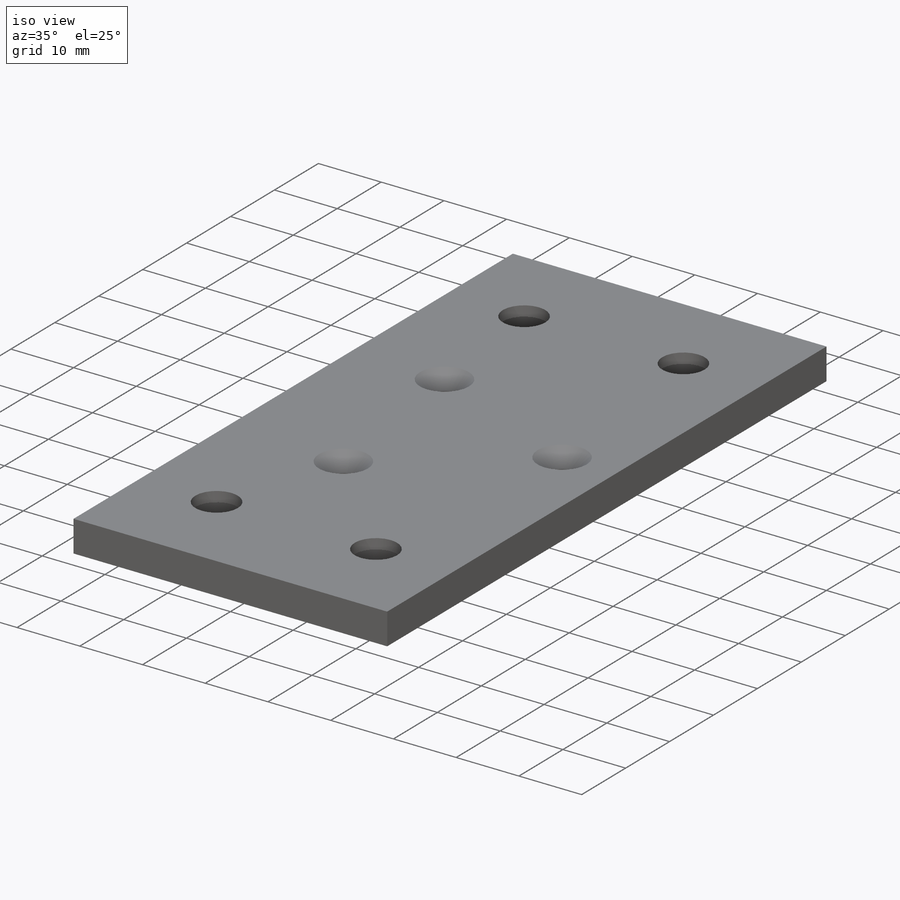
[diagram: iso view]
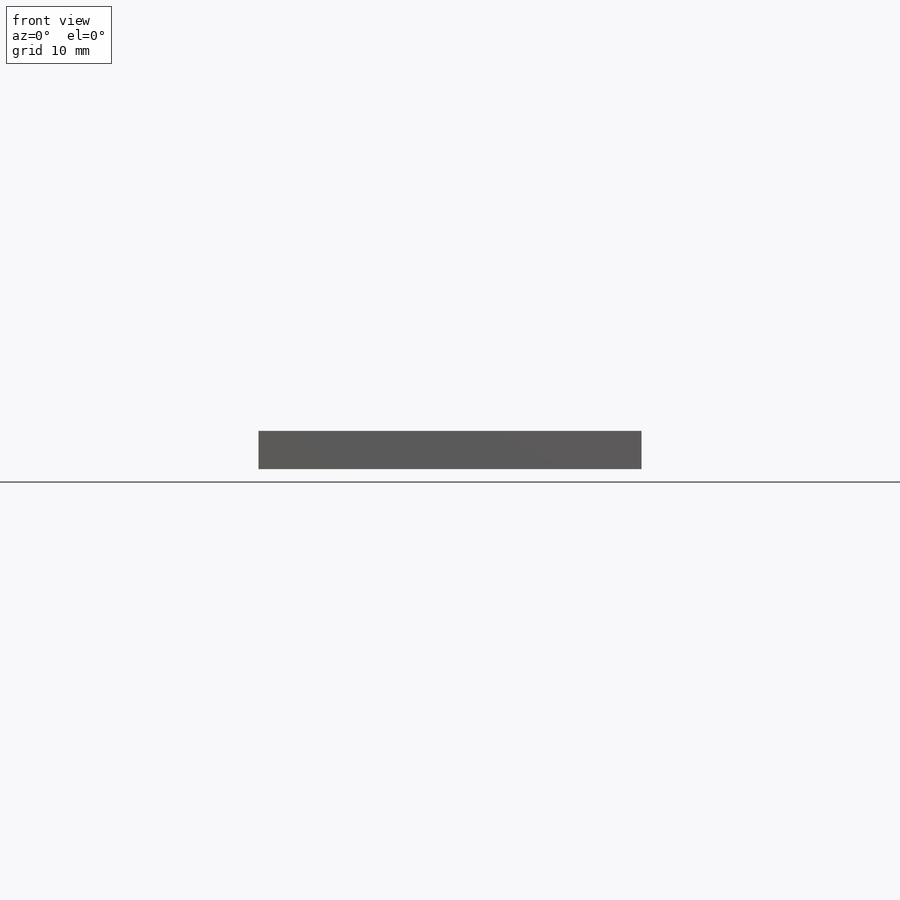
[diagram: front view]
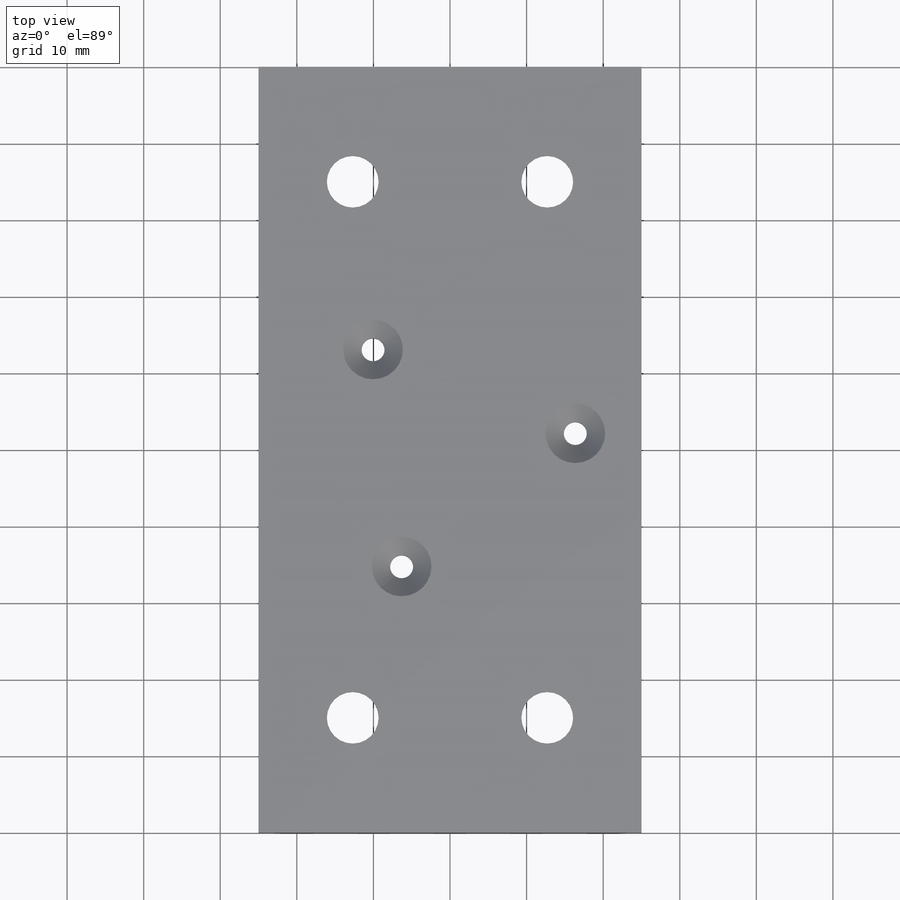
[diagram: top view]
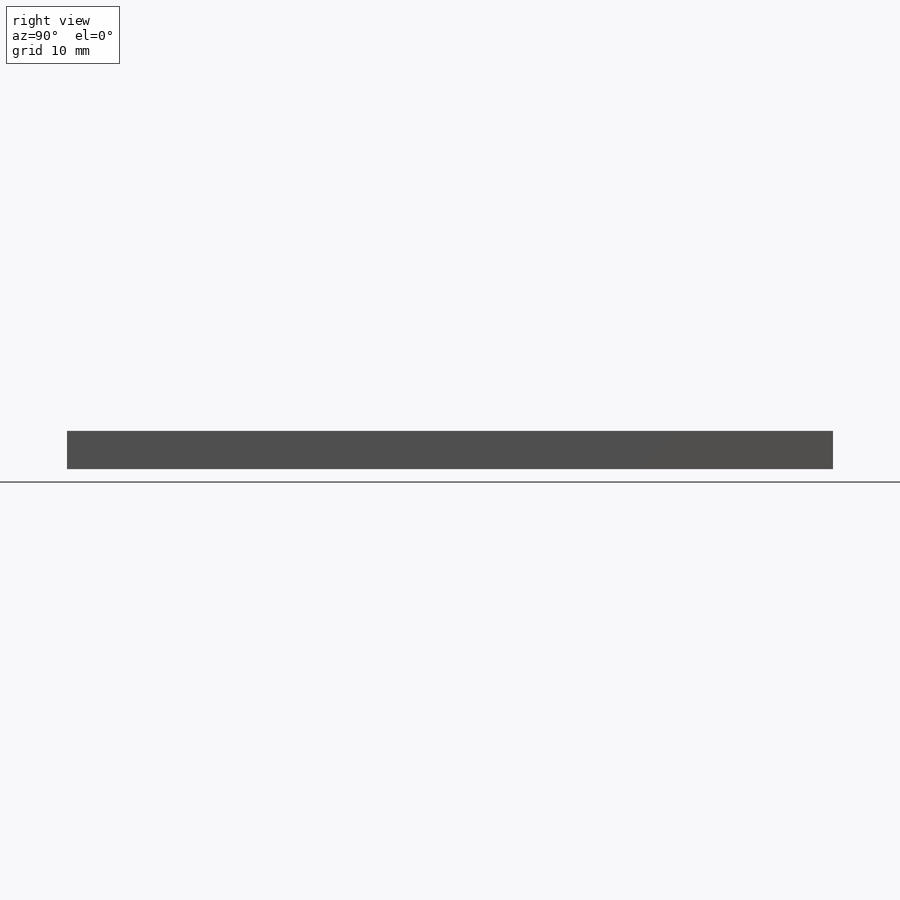
[diagram: right view]
SOLIDWORKS PART (.sldprt)
format: sldprt  version: not decoded by parser v0  size: 208,896 bytes
history: native  units: mm
features: sketch x5, material x1, extrude x1, cut_extrude x1, chamfer x1, hole x1 (+12 scaffold rows collapsed)
feature tree (22):
  scaffold x12  (default folders/planes/origin — collapsed)
  material  "Material <not specified>"
  sketch  "Sketch1"  dims[D1=100.0mm D2=50.0mm]
  extrude  "Boss-Extrude1"  Depth=5mm
  sketch  "Sketch3"  dims[c1.D2=3.0mm c1.D5=3.0mm c1.D8=3.0mm c1.D1=~26.898464mm c2.D1=22.5deg c2.D3=16.5mm c2.D4=~27.059805mm c3.D4=120.0deg c3.D6=16.5mm c3.D7=25.0mm c4.D7=~129.448884deg c5.D7=~27.059805mm c6.D7=120.0deg c6.D9=16.5mm]
  cut_extrude  "Cut-Extrude2"  Depth=5mm
  sketch  "Sketch4"  dims[D1=4.826mm D2=35.0mm D3=12.7mm]
  chamfer  "Chamfer1"  Distance=2.4mm Angle=45deg
  hole  "CBORE for 1/4 Button Head Cap Screw2"  Diameter=6.7564mm Depth=5mm
  sketch  "Sketch10"
  sketch  "Sketch9"  dims[hole-wizard template sketch: 42 standard entries collapsed; hole parameters kept: c12.Thru Hole Depth=5.0mm c12.C'Bore Dia.=~11.90752mm c12.C'Bore Depth=3.3528mm]
decode coverage: 8 of 9 modeling features carry decoded parameters
note: ~ marks probable driven/reference dimensions
note: suppression state not decoded; provenance and decode notes live in map.json
